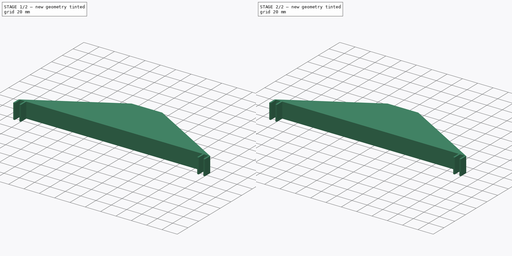
[diagram: build sequence overview — one tinted view per stage of 2, left to right]
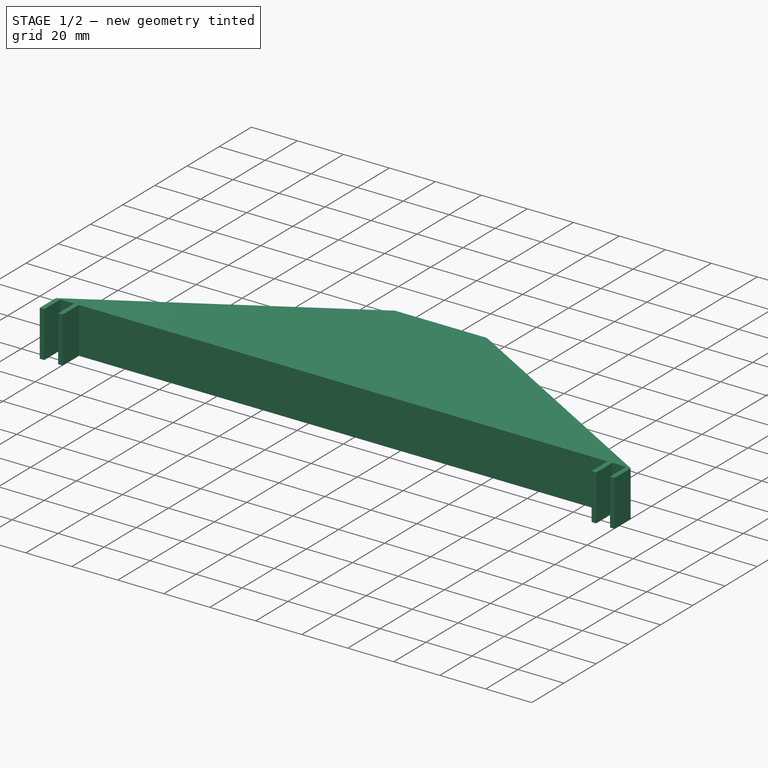
[diagram: stage 1 of 2 — iso view after this stage's code; geometry added in this stage tinted green]
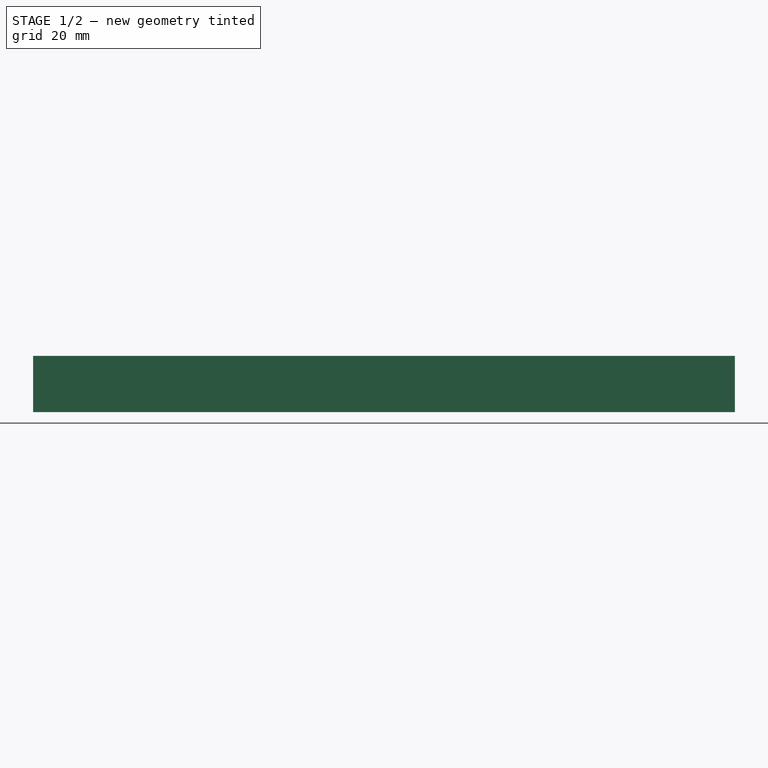
[diagram: stage 1 of 2 — front view after this stage's code; geometry added in this stage tinted green]
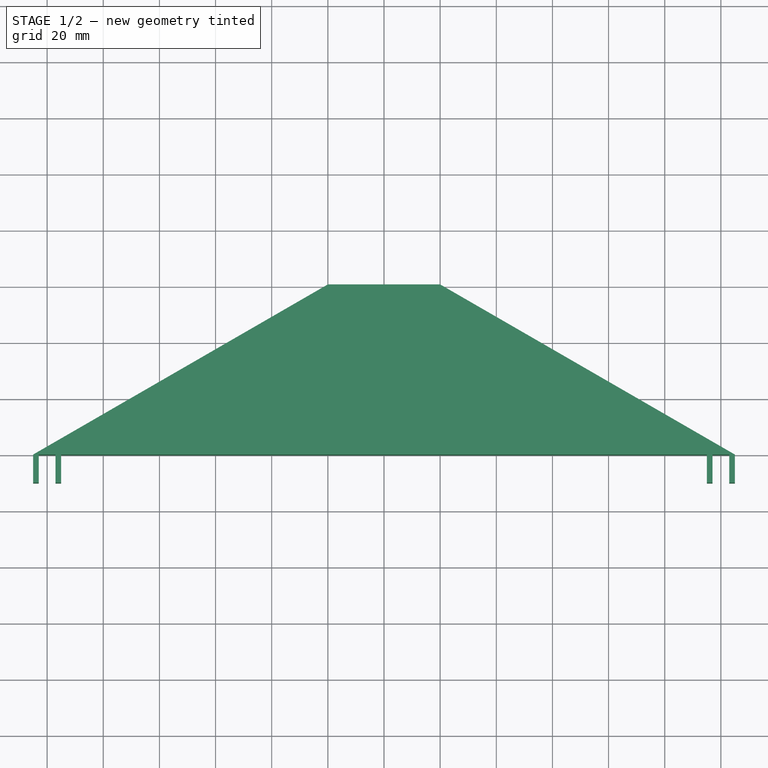
[diagram: stage 1 of 2 — top view after this stage's code; geometry added in this stage tinted green]
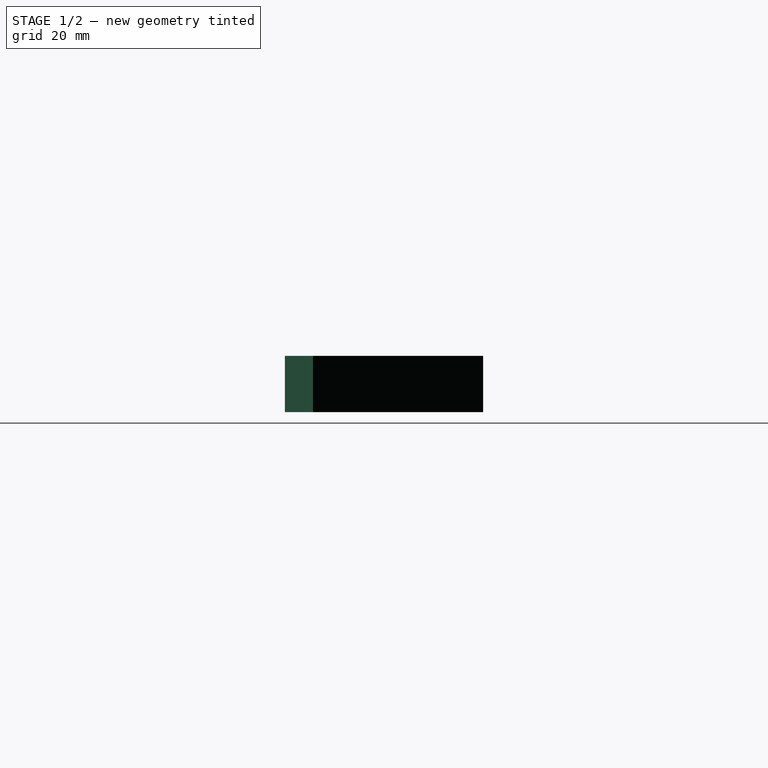
[diagram: stage 1 of 2 — right view after this stage's code; geometry added in this stage tinted green]
FCSTD DOCUMENT  (FreeCAD 0.19R24366 (Git))
Label: lid support
License: All rights reserved
LicenseURL: http://en.wikipedia.org/wiki/All_rights_reserved
objects: Sketcher::SketchObject×3, Part::FeaturePython×3, PartDesign::Body×2, PartDesign::Pad×1, Part::Extrusion×1, App::DocumentObjectGroup×1
note: 11 computed .brp shape members not serialized (recipe doc carries the construction recipe); baked Part::Feature solids carry a one-line shape summary decoded from their .brp

FEATURE [Sketcher::SketchObject] Sketch
  FullyConstrained = true
  MapMode = 5
  Support = -> [XY_Plane]
  sketch-geometry (18):
    g0: LineSegment StartX=-125 StartY=0 StartZ=0 EndX=-125 EndY=-10 EndZ=0
    g1: LineSegment StartX=-125 StartY=-10 StartZ=0 EndX=-123 EndY=-10 EndZ=0
    g2: LineSegment StartX=-123 StartY=-10 StartZ=0 EndX=-123 EndY=0 EndZ=0
    g3: LineSegment StartX=-123 StartY=0 StartZ=0 EndX=-117 EndY=0 EndZ=0
    g4: LineSegment StartX=-117 StartY=0 StartZ=0 EndX=-117 EndY=-10 EndZ=0
    g5: LineSegment StartX=-117 StartY=-10 StartZ=0 EndX=-115 EndY=-10 EndZ=0
    g6: LineSegment StartX=-115 StartY=-10 StartZ=0 EndX=-115 EndY=0 EndZ=0
    g7: LineSegment StartX=-115 StartY=0 StartZ=0 EndX=115 EndY=0 EndZ=0
    g8: LineSegment StartX=115 StartY=0 StartZ=0 EndX=115 EndY=-10 EndZ=0
    g9: LineSegment StartX=115 StartY=-10 StartZ=0 EndX=117 EndY=-10 EndZ=0
    g10: LineSegment StartX=117 StartY=-10 StartZ=0 EndX=117 EndY=0 EndZ=0
    g11: LineSegment StartX=117 StartY=0 StartZ=0 EndX=123 EndY=0 EndZ=0
    g12: LineSegment StartX=123 StartY=0 StartZ=0 EndX=123 EndY=-10 EndZ=0
    g13: LineSegment StartX=123 StartY=-10 StartZ=0 EndX=125 EndY=-10 EndZ=0
    g14: LineSegment StartX=125 StartY=-10 StartZ=0 EndX=125 EndY=0 EndZ=0
    g15: LineSegment StartX=125 StartY=0 StartZ=0 EndX=20 EndY=60.6218 EndZ=0
    g16: LineSegment StartX=20 StartY=60.6218 StartZ=0 EndX=-20 EndY=60.6218 EndZ=0
    g17: LineSegment StartX=-20 StartY=60.6218 StartZ=0 EndX=-125 EndY=0 EndZ=0
  constraints (52):
    c: PointOnObject(g0,g-1)
    c: Vertical(g0)
    c: Coincident(g0,g1)
    c: Coincident(g1,g2)
    c: PointOnObject(g2,g-1)
    c: Vertical(g2)
    c: Coincident(g2,g3)
    c: PointOnObject(g3,g-1)
    c: Coincident(g3,g4)
    c: Vertical(g4)
    c: Coincident(g4,g5)
    c: Coincident(g5,g6)
    c: PointOnObject(g6,g-1)
    c: Vertical(g6)
    c: Coincident(g6,g7)
    c: PointOnObject(g7,g-1)
    c: Coincident(g7,g8)
    c: Vertical(g8)
    c: Coincident(g8,g9)
    c: Horizontal(g9)
    c: Coincident(g9,g10)
    c: PointOnObject(g10,g-1)
    c: Coincident(g10,g11)
    c: PointOnObject(g11,g-1)
    c: Coincident(g11,g12)
    c: Coincident(g12,g13)
    c: Coincident(g13,g14)
    c: Vertical(g14)
    c: Coincident(g14,g15)
    c: Coincident(g15,g16)
    c: Coincident(g16,g17)
    c: Coincident(g17,g0)
    c: DistanceX(g0,g14) = 250
    c: Symmetric(g0,g14,g-1)
    c: DistanceX(g1,g1) = 2
    c: DistanceX(g5,g5) = 2
    c: Horizontal(g5)
    c: Horizontal(g1)
    c: DistanceX(g3,g3) = 6
    c: DistanceX(g9,g9) = 2
    c: Horizontal(g13)
    c: Equal(g8,g10)
    c: Equal(g10,g12)
    c: Equal(g12,g14)
    c: DistanceX(g13,g13) = 2
    c: DistanceX(g11,g11) = 6
    c: Equal(g2,g4)
    c: DistanceY(g0,g0) = 10
    c: Equal(g6,g8)
    c: DistanceX(g16,g16) = 40
    c: Angle(g7,g17) = 0.523599
    c: Symmetric(g16,g15,g-2)
FEATURE [PartDesign::Pad] Pad
  Direction = (1,1,1)
  Length = 20
  Length2 = 100
  Profile = -> Sketch
  Type = 0
FEATURE [Sketcher::SketchObject] Sketch001
  FullyConstrained = false
  MapMode = 5
  Placement = pos=(0,0,0) rot=(1,0,0;1.5708rad)
  Support = -> [XZ_Plane]
  sketch-geometry (30):
    g0: LineSegment StartX=-2.75428 StartY=22.6295 StartZ=0 EndX=3.32779 EndY=18.4663 EndZ=0
    g1: LineSegment StartX=3.32779 StartY=18.4663 StartZ=0 EndX=-2.96857 EndY=18.7608 EndZ=0
    g2: LineSegment StartX=-2.96857 StartY=18.7608 StartZ=0 EndX=-3.81545 EndY=17.3248 EndZ=0
    g3: LineSegment StartX=-3.81545 StartY=17.3248 StartZ=0 EndX=0 EndY=16.3675 EndZ=0
    g4: LineSegment StartX=0 StartY=16.3675 StartZ=0 EndX=2.88594 EndY=16.883 EndZ=0
    g5: LineSegment StartX=2.88594 StartY=16.883 StartZ=0 EndX=4.69016 EndY=15.1524 EndZ=0
    g6: LineSegment StartX=4.69016 StartY=15.1524 StartZ=0 EndX=0.787156 EndY=14.1582 EndZ=0
    g7: LineSegment StartX=0.787156 StartY=14.1582 StartZ=0 EndX=-4.29412 EndY=15.4101 EndZ=0
    g8: LineSegment StartX=-4.29412 StartY=15.4101 StartZ=0 EndX=-3.29996 EndY=12.5749 EndZ=0
    g9: LineSegment StartX=-3.29996 StartY=12.5749 StartZ=0 EndX=-1.53256 EndY=13.4586 EndZ=0
    g10: LineSegment StartX=-1.53256 StartY=13.4586 StartZ=0 EndX=-0.685676 EndY=10.513 EndZ=0
    g11: LineSegment StartX=-0.685676 StartY=10.513 StartZ=0 EndX=0.455769 EndY=12.7222 EndZ=0
    g12: LineSegment StartX=0.455769 StartY=12.7222 StartZ=0 EndX=3.10687 EndY=10.2552 EndZ=0
    g13: LineSegment StartX=3.10687 StartY=10.2552 StartZ=0 EndX=3.99057 EndY=12.354 EndZ=0
    g14: LineSegment StartX=3.99057 StartY=12.354 StartZ=0 EndX=4.35877 EndY=9.26107 EndZ=0
    g15: LineSegment StartX=4.35877 StartY=9.26107 StartZ=0 EndX=1.89178 EndY=8.15644 EndZ=0
    g16: LineSegment StartX=1.89178 StartY=8.15644 StartZ=0 EndX=0 EndY=9.11378 EndZ=0
    g17: LineSegment StartX=0 StartY=9.11378 StartZ=0 EndX=-2.45308 EndY=7.60413 EndZ=0
    g18: LineSegment StartX=-2.45308 StartY=7.60413 StartZ=0 EndX=-3.15267 EndY=10.4393 EndZ=0
    g19: LineSegment StartX=-3.15267 StartY=10.4393 StartZ=0 EndX=-4.58868 EndY=8.15644 EndZ=0
    g20: LineSegment StartX=-4.58868 StartY=8.15644 StartZ=0 EndX=-3.00539 EndY=4.03251 EndZ=0
    g21: LineSegment StartX=-3.00539 StartY=4.03251 StartZ=0 EndX=0 EndY=6.64679 EndZ=0
    g22: LineSegment StartX=0 StartY=6.64679 StartZ=0 EndX=4.28513 EndY=3.77476 EndZ=0
    g23: LineSegment StartX=4.28513 StartY=3.77476 StartZ=0 EndX=3.43825 EndY=2.55968 EndZ=0
    g24: LineSegment StartX=3.43825 StartY=2.55968 StartZ=0 EndX=1.59721 EndY=4.03251 EndZ=0
    g25: LineSegment StartX=1.59721 StartY=4.03251 StartZ=0 EndX=1.08172 EndY=2.00737 EndZ=0
    g26: LineSegment StartX=1.08172 StartY=2.00737 StartZ=0 EndX=-2.82128 EndY=1.0132 EndZ=0
    g27: LineSegment StartX=-2.82128 StartY=1.0132 StartZ=0 EndX=-4.22048 EndY=3.40656 EndZ=0
    g28: LineSegment StartX=-4.22048 StartY=3.40656 StartZ=0 EndX=-5.84059 EndY=0.755457 EndZ=0
    g29: LineSegment StartX=-5.84059 StartY=0.755457 StartZ=0 EndX=2.48781 EndY=-1.9726 EndZ=0
  constraints (32):
    c: Coincident(g0,g1)
    c: Coincident(g1,g2)
    c: Coincident(g2,g3)
    c: PointOnObject(g3,g-2)
    c: Coincident(g3,g4)
    c: Coincident(g4,g5)
    c: Coincident(g5,g6)
    c: Coincident(g6,g7)
    c: Coincident(g7,g8)
    c: Coincident(g8,g9)
    c: Coincident(g9,g10)
    c: Coincident(g10,g11)
    c: Coincident(g11,g12)
    c: Coincident(g12,g13)
    c: Coincident(g13,g14)
    c: Coincident(g14,g15)
    c: Coincident(g15,g16)
    c: PointOnObject(g16,g-2)
    c: Coincident(g16,g17)
    c: Coincident(g17,g18)
    c: Coincident(g18,g19)
    c: Coincident(g19,g20)
    c: Coincident(g20,g21)
    c: PointOnObject(g21,g-2)
    c: Coincident(g21,g22)
    c: Coincident(g22,g23)
    c: Coincident(g23,g24)
    c: Coincident(g24,g25)
    c: Coincident(g25,g26)
    c: Coincident(g26,g27)
    c: Coincident(g27,g28)
    c: Coincident(g28,g29)
FEATURE [PartDesign::Body] Body
  Group = -> [Sketch,Pad,Sketch001]
  Origin = -> Origin
  Tip = -> Pad
FEATURE [Part::Extrusion] Extrude
  Base = -> Sketch001
  Dir = (0,-1,2e-16)
  DirMode = 2
  FaceMakerClass = Part::FaceMakerBullseye
  LengthFwd = 100
  LengthRev = 0
  Reversed = true
  Solid = false
  Symmetric = false
FEATURE [Part::FeaturePython] Slice  # WARN: FeaturePython — macro-defined, semantics opaque (R4)
  Base = -> Body
  Mode = 1
  Tolerance = 0
  Tools = -> [Extrude]
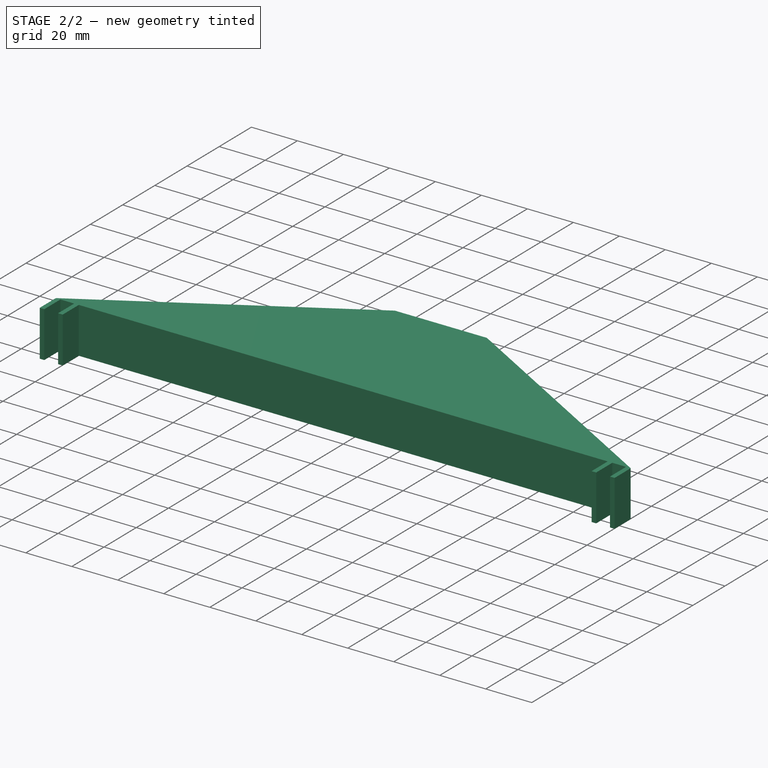
[diagram: stage 2 of 2 — iso view after this stage's code; geometry added in this stage tinted green]
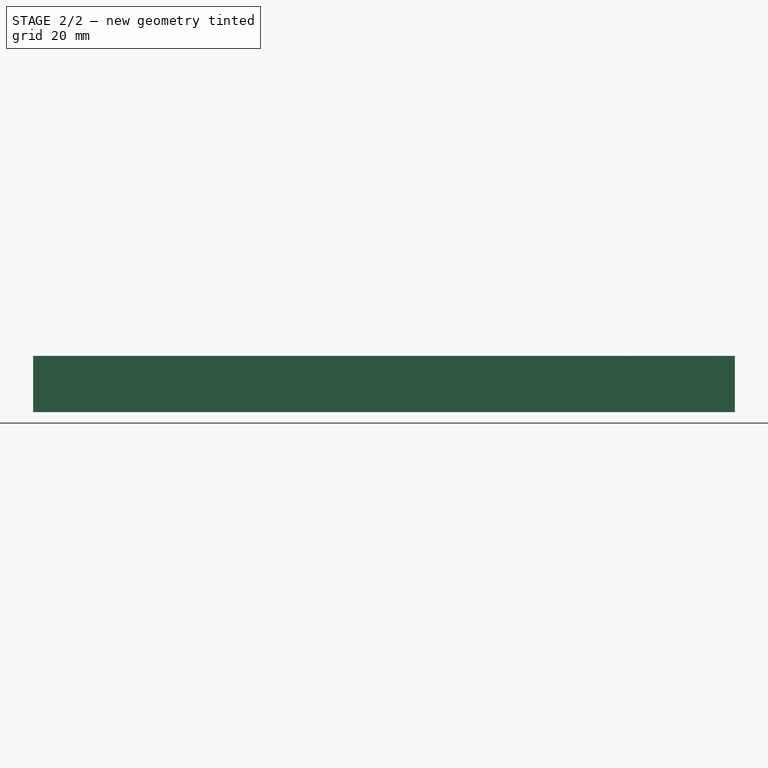
[diagram: stage 2 of 2 — front view after this stage's code; geometry added in this stage tinted green]
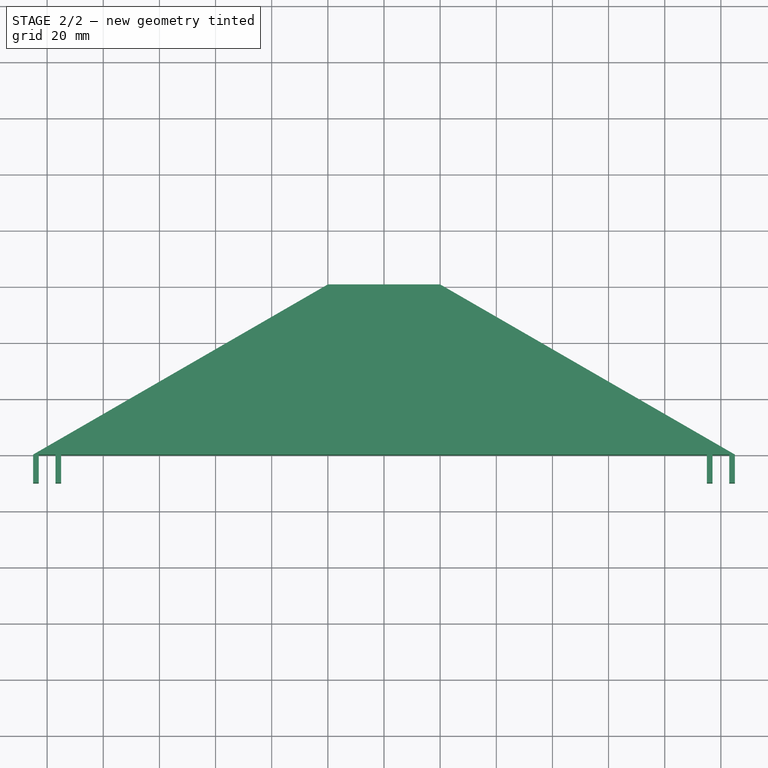
[diagram: stage 2 of 2 — top view after this stage's code; geometry added in this stage tinted green]
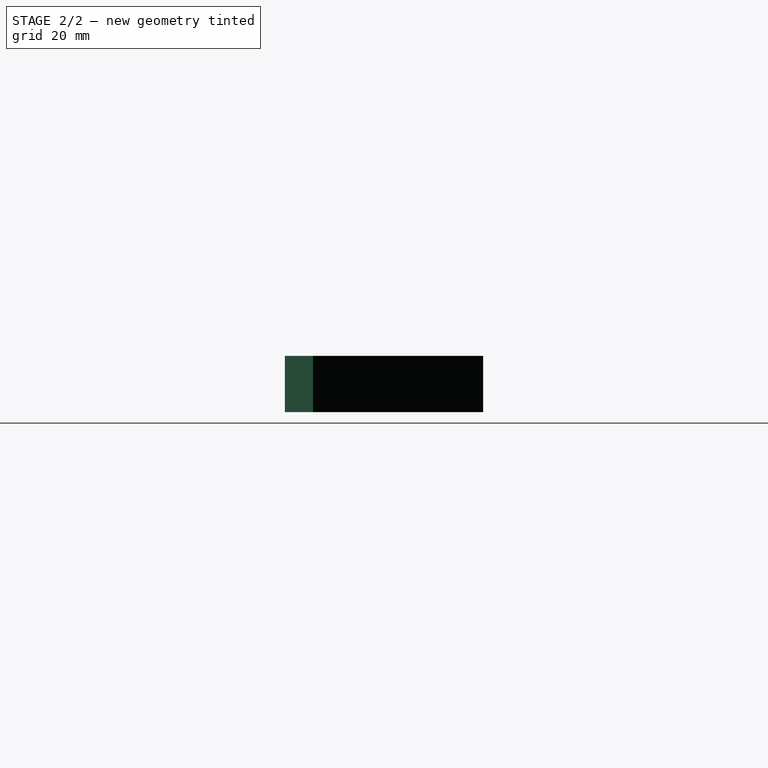
[diagram: stage 2 of 2 — right view after this stage's code; geometry added in this stage tinted green]
FEATURE [Part::FeaturePython] Slice_child0  label="Slice.0"  # WARN: FeaturePython — macro-defined, semantics opaque (R4)
  Base = -> Slice
  FilterType = 1
  Invert = false
  OverrideMaxVal = 0
  WindowFrom = 80
  WindowTo = 100
  items = 0
FEATURE [Part::FeaturePython] Slice_child1  label="Slice.1"  # WARN: FeaturePython — macro-defined, semantics opaque (R4)
  Base = -> Slice
  FilterType = 1
  Invert = false
  OverrideMaxVal = 0
  WindowFrom = 80
  WindowTo = 100
  items = 1
FEATURE [App::DocumentObjectGroup] GrExplode_Slice  label="Exploded Slice"
  Group = -> [Slice_child0,Slice_child1]
FEATURE [Sketcher::SketchObject] Sketch002
  FullyConstrained = false
  MapMode = 5
  Support = -> [XY_Plane001]
  sketch-geometry (10):
    g0: LineSegment StartX=-82.8205 StartY=35.2283 StartZ=0 EndX=-93.0166 EndY=18.3827 EndZ=0
    g1: LineSegment StartX=-93.0166 StartY=18.3827 StartZ=0 EndX=-75.9493 EndY=20.5992 EndZ=0
    g2: LineSegment StartX=-75.9493 StartY=20.5992 StartZ=0 EndX=-84.5938 EndY=10.1815 EndZ=0
    g3: LineSegment StartX=-84.5938 StartY=10.1815 StartZ=0 EndX=-56.0005 EndY=15.7228 EndZ=0
    g4: LineSegment StartX=-56.0005 StartY=15.7228 StartZ=0 EndX=-61.3202 EndY=6.63503 EndZ=0
    g5: LineSegment StartX=-61.3202 StartY=6.63503 StartZ=0 EndX=-85.0371 EndY=2.42362 EndZ=0
    g6: LineSegment StartX=-85.0371 StartY=2.42362 StartZ=0 EndX=-76.8359 EndY=-1.34449 EndZ=0
    g7: LineSegment StartX=-76.8359 StartY=-1.34449 StartZ=0 EndX=-64.645 EndY=-7.99409 EndZ=0
    g8: LineSegment StartX=82.1819 StartY=20.681 StartZ=0 EndX=52.702 EndY=7.02601 EndZ=0
    g9: LineSegment StartX=52.702 StartY=7.02601 StartZ=0 EndX=81.6044 EndY=7.02601 EndZ=0
  constraints (9):
    c: Coincident(g0,g1)
    c: Coincident(g1,g2)
    c: Coincident(g2,g3)
    c: Coincident(g3,g4)
    c: Coincident(g4,g5)
    c: Coincident(g5,g6)
    c: Coincident(g6,g7)
    c: Coincident(g8,g9)
    c: Horizontal(g9)
FEATURE [PartDesign::Body] Body001
  Group = -> [Sketch002]
  Origin = -> Origin001
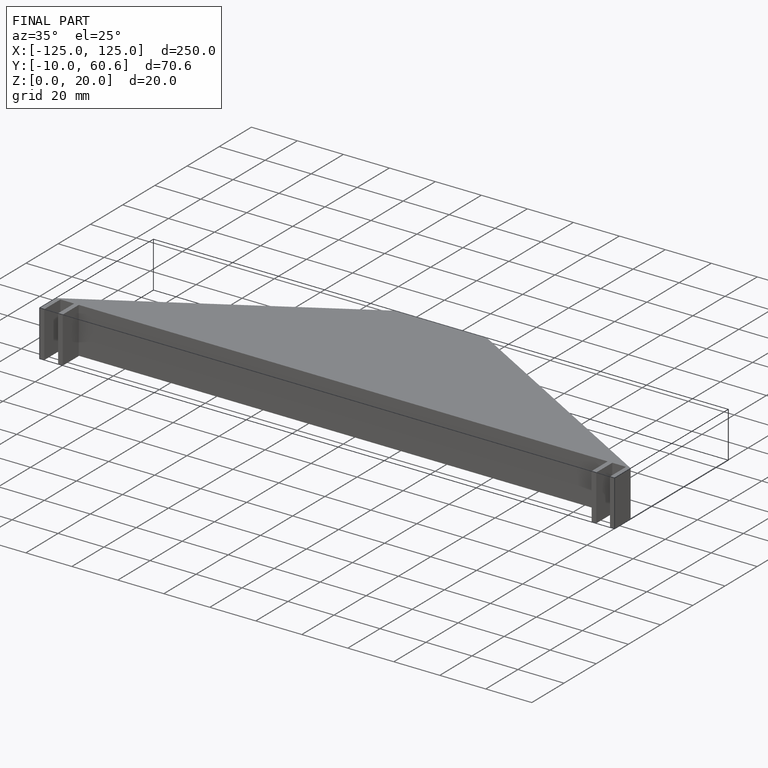
[diagram: finished part — iso view with bounding-box wireframe]
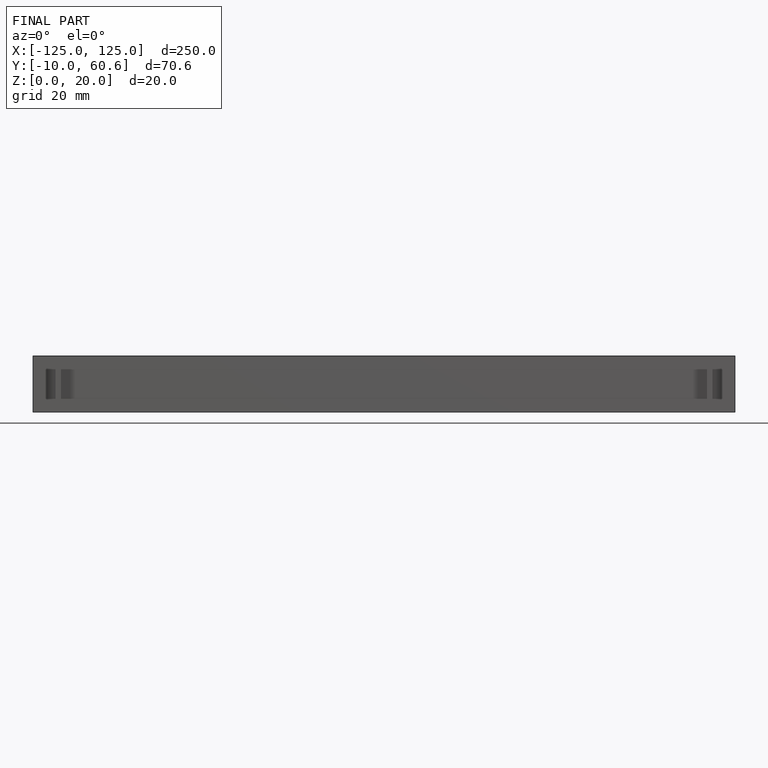
[diagram: finished part — front view with bounding-box wireframe]
